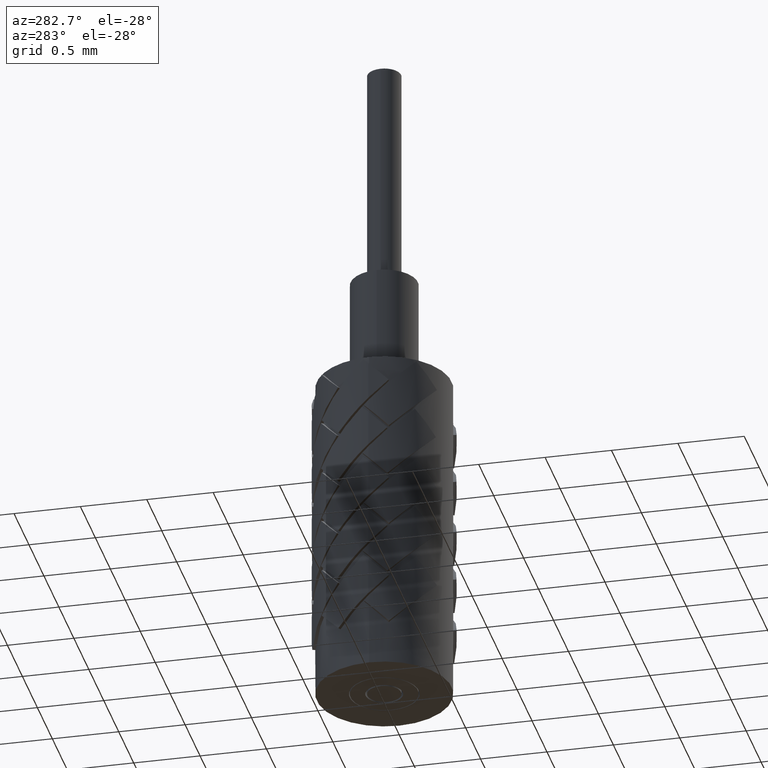
[diagram: clean part render]
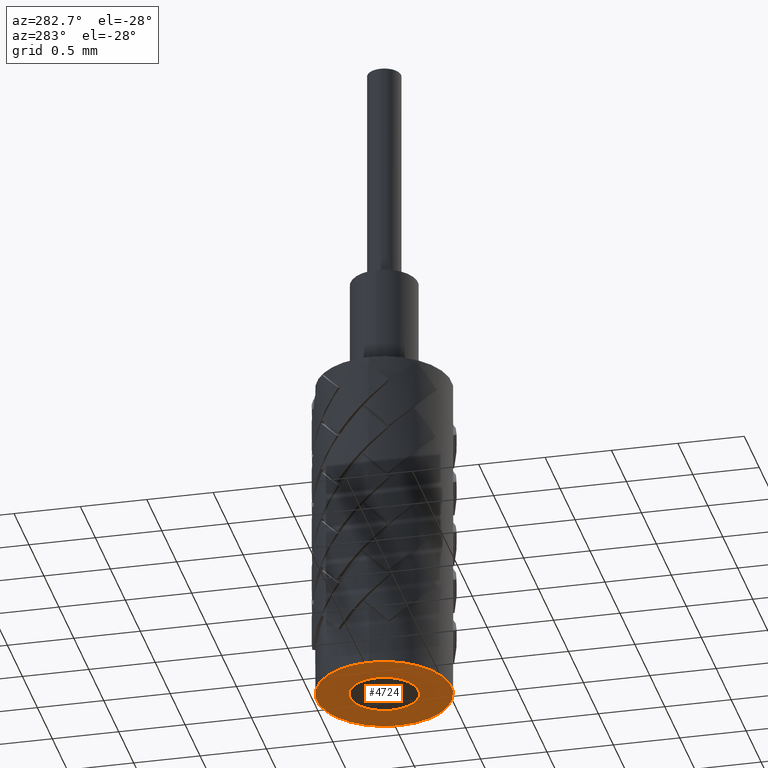
[diagram: same view with one face highlighted and labeled with its STEP entity id]
A machine part, auxiliary view. The second image highlights one B-rep face of the part: STEP entity #4724.
In plain terms, the highlighted planar face has unit normal (0, 0, -1).
Its self-contained STEP definition (entity closure, byte-faithful):
#65 = ORIENTED_EDGE ( 'NONE', *, *, #4427, .F. ) ;
#157 = ORIENTED_EDGE ( 'NONE', *, *, #4429, .T. ) ;
#178 = ORIENTED_EDGE ( 'NONE', *, *, #4156, .T. ) ;
#315 = EDGE_LOOP ( 'NONE', ( #157, #178 ) ) ;
#430 = CIRCLE ( 'NONE', #1358, 0.02000000000000000000 ) ;
#443 = CIRCLE ( 'NONE', #1364, 0.01022601437521212400 ) ;
#458 = CIRCLE ( 'NONE', #1365, 0.02000000000000000000 ) ;
#468 = CIRCLE ( 'NONE', #1367, 0.01022601437521212400 ) ;
#719 = CARTESIAN_POINT ( 'NONE',  ( 0.0000000000000000000, 0.0000000000000000000, 0.0000000000000000000 ) ) ;
#720 = DIRECTION ( 'NONE',  ( 0.0000000000000000000, 0.0000000000000000000, -1.000000000000000000 ) ) ;
#721 = DIRECTION ( 'NONE',  ( -1.000000000000000000, 0.0000000000000000000, 0.0000000000000000000 ) ) ;
#1358 = AXIS2_PLACEMENT_3D ( 'NONE', #4995, #4994, #4991 ) ;
#1364 = AXIS2_PLACEMENT_3D ( 'NONE', #3927, #3928, #3929 ) ;
#1365 = AXIS2_PLACEMENT_3D ( 'NONE', #3932, #3933, #3934 ) ;
#1367 = AXIS2_PLACEMENT_3D ( 'NONE', #719, #720, #721 ) ;
#1794 = EDGE_LOOP ( 'NONE', ( #2456, #65 ) ) ;
#2126 = CARTESIAN_POINT ( 'NONE',  ( 0.0000000000000000000, 0.0000000000000000000, 0.0000000000000000000 ) ) ;
#2129 = PLANE ( 'NONE',  #4378 ) ;
#2131 = DIRECTION ( 'NONE',  ( 0.0000000000000000000, 0.0000000000000000000, -1.000000000000000000 ) ) ;
#2132 = DIRECTION ( 'NONE',  ( -1.000000000000000000, 0.0000000000000000000, -0.0000000000000000000 ) ) ;
#2456 = ORIENTED_EDGE ( 'NONE', *, *, #4476, .F. ) ;
#3316 = VERTEX_POINT ( 'NONE', #5453 ) ;
#3322 = VERTEX_POINT ( 'NONE', #5471 ) ;
#3331 = VERTEX_POINT ( 'NONE', #5496 ) ;
#3376 = VERTEX_POINT ( 'NONE', #5209 ) ;
#3927 = CARTESIAN_POINT ( 'NONE',  ( 0.0000000000000000000, 0.0000000000000000000, 0.0000000000000000000 ) ) ;
#3928 = DIRECTION ( 'NONE',  ( 0.0000000000000000000, 0.0000000000000000000, -1.000000000000000000 ) ) ;
#3929 = DIRECTION ( 'NONE',  ( -1.000000000000000000, 0.0000000000000000000, 0.0000000000000000000 ) ) ;
#3932 = CARTESIAN_POINT ( 'NONE',  ( 0.0000000000000000000, 0.0000000000000000000, 0.0000000000000000000 ) ) ;
#3933 = DIRECTION ( 'NONE',  ( 0.0000000000000000000, 0.0000000000000000000, -1.000000000000000000 ) ) ;
#3934 = DIRECTION ( 'NONE',  ( -1.000000000000000000, 0.0000000000000000000, 0.0000000000000000000 ) ) ;
#4156 = EDGE_CURVE ( 'NONE', #3316, #3376, #430, .T. ) ;
#4378 = AXIS2_PLACEMENT_3D ( 'NONE', #2126, #2131, #2132 ) ;
#4427 = EDGE_CURVE ( 'NONE', #3331, #3322, #443, .T. ) ;
#4429 = EDGE_CURVE ( 'NONE', #3376, #3316, #458, .T. ) ;
#4476 = EDGE_CURVE ( 'NONE', #3322, #3331, #468, .T. ) ;
#4724 = ADVANCED_FACE ( 'NONE', ( #6119, #6121 ), #2129, .T. ) ;
#4991 = DIRECTION ( 'NONE',  ( -1.000000000000000000, 0.0000000000000000000, 0.0000000000000000000 ) ) ;
#4994 = DIRECTION ( 'NONE',  ( 0.0000000000000000000, 0.0000000000000000000, -1.000000000000000000 ) ) ;
#4995 = CARTESIAN_POINT ( 'NONE',  ( 0.0000000000000000000, 0.0000000000000000000, 0.0000000000000000000 ) ) ;
#5209 = CARTESIAN_POINT ( 'NONE',  ( -0.02000000000000000000, 0.0000000000000000000, 0.0000000000000000000 ) ) ;
#5453 = CARTESIAN_POINT ( 'NONE',  ( 0.02000000000000000000, 2.449293598294706800E-018, 0.0000000000000000000 ) ) ;
#5471 = CARTESIAN_POINT ( 'NONE',  ( -0.01022601437521212400, 0.0000000000000000000, 0.0000000000000000000 ) ) ;
#5496 = CARTESIAN_POINT ( 'NONE',  ( 0.01022601437521212400, 1.252325577263834800E-018, 0.0000000000000000000 ) ) ;
#6119 = FACE_BOUND ( 'NONE', #1794, .T. ) ;
#6121 = FACE_OUTER_BOUND ( 'NONE', #315, .T. ) ;